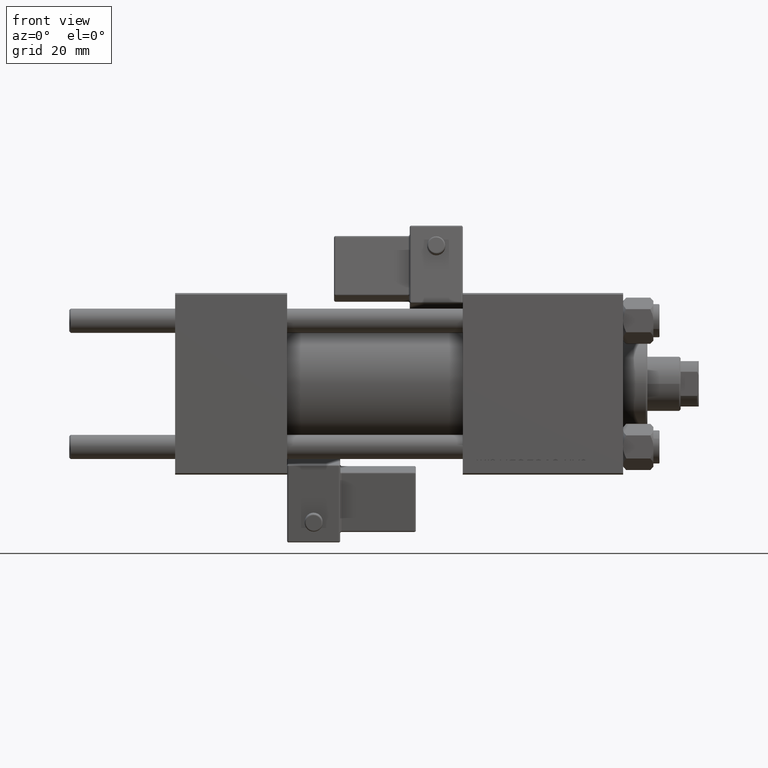
[diagram: clean part render]
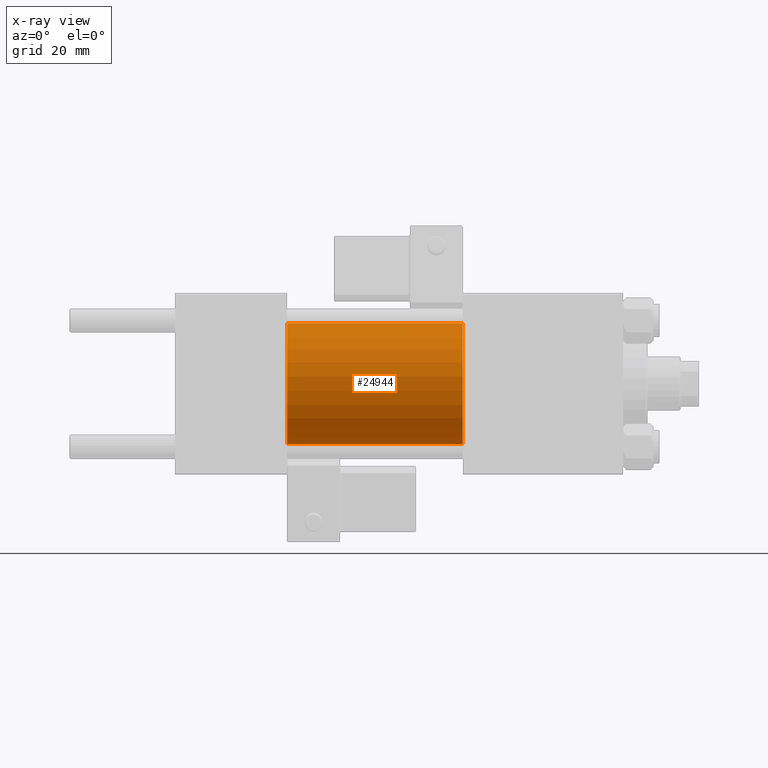
[diagram: x-ray — body ghosted, one internal face saturated and labeled with its STEP entity id]
A machine part, front view, then the same camera in x-ray: the body is ghosted and one INTERNAL B-rep face — a face not visible from any outside direction — is saturated and labeled: STEP entity #24944.
In plain terms, the highlighted cylindrical surface (partial cylindrical patch) has radius 20 mm, axis along (-1, -0, -0).
Its self-contained STEP definition (entity closure, byte-faithful):
#930 = DIRECTION ( 'NONE',  ( 0.000000000000000000, 0.000000000000000000, -1.000000000000000000 ) ) ;
#1566 = EDGE_LOOP ( 'NONE', ( #32404, #4285, #28802, #31314 ) ) ;
#4285 = ORIENTED_EDGE ( 'NONE', *, *, #21292, .T. ) ;
#4785 = VECTOR ( 'NONE', #33502, 1000.000000000000000 ) ;
#4838 = DIRECTION ( 'NONE',  ( 0.000000000000000000, 0.000000000000000000, -1.000000000000000000 ) ) ;
#5286 = VECTOR ( 'NONE', #35575, 1000.000000000000000 ) ;
#6251 = DIRECTION ( 'NONE',  ( -1.000000000000000000, -0.000000000000000000, -0.000000000000000000 ) ) ;
#7932 = EDGE_CURVE ( 'NONE', #30379, #21343, #31614, .T. ) ;
#10203 = FACE_OUTER_BOUND ( 'NONE', #1566, .T. ) ;
#13681 = CIRCLE ( 'NONE', #43110, 20.00000000000000000 ) ;
#15557 = CARTESIAN_POINT ( 'NONE',  ( 37.00000000000000000, 0.000000000000000000, 20.00000000000000000 ) ) ;
#17212 = DIRECTION ( 'NONE',  ( 1.000000000000000000, 0.000000000000000000, 0.000000000000000000 ) ) ;
#17438 = CARTESIAN_POINT ( 'NONE',  ( 95.00000000000000000, 2.449293598294706119E-15, -20.00000000000000000 ) ) ;
#17691 = LINE ( 'NONE', #17438, #4785 ) ;
#17970 = CARTESIAN_POINT ( 'NONE',  ( 95.00000000000000000, 2.449293598294706119E-15, -20.00000000000000000 ) ) ;
#21208 = DIRECTION ( 'NONE',  ( 1.000000000000000000, 0.000000000000000000, 0.000000000000000000 ) ) ;
#21292 = EDGE_CURVE ( 'NONE', #28949, #34409, #17691, .T. ) ;
#21343 = VERTEX_POINT ( 'NONE', #15557 ) ;
#24637 = CIRCLE ( 'NONE', #48179, 20.00000000000000000 ) ;
#24944 = ADVANCED_FACE ( 'NONE', ( #10203 ), #34183, .F. ) ;
#28802 = ORIENTED_EDGE ( 'NONE', *, *, #42040, .F. ) ;
#28949 = VERTEX_POINT ( 'NONE', #17970 ) ;
#30379 = VERTEX_POINT ( 'NONE', #44905 ) ;
#31314 = ORIENTED_EDGE ( 'NONE', *, *, #7932, .F. ) ;
#31614 = LINE ( 'NONE', #43202, #5286 ) ;
#32404 = ORIENTED_EDGE ( 'NONE', *, *, #43345, .T. ) ;
#33502 = DIRECTION ( 'NONE',  ( -1.000000000000000000, -0.000000000000000000, -0.000000000000000000 ) ) ;
#33672 = CARTESIAN_POINT ( 'NONE',  ( 37.00000000000000000, 2.449293598294706119E-15, -20.00000000000000000 ) ) ;
#34183 = CYLINDRICAL_SURFACE ( 'NONE', #37755, 20.00000000000000000 ) ;
#34409 = VERTEX_POINT ( 'NONE', #33672 ) ;
#35575 = DIRECTION ( 'NONE',  ( -1.000000000000000000, -0.000000000000000000, -0.000000000000000000 ) ) ;
#37014 = CARTESIAN_POINT ( 'NONE',  ( 37.00000000000000000, 0.000000000000000000, 0.000000000000000000 ) ) ;
#37755 = AXIS2_PLACEMENT_3D ( 'NONE', #38129, #6251, #38910 ) ;
#38129 = CARTESIAN_POINT ( 'NONE',  ( 95.00000000000000000, 0.000000000000000000, 0.000000000000000000 ) ) ;
#38910 = DIRECTION ( 'NONE',  ( 0.000000000000000000, 0.000000000000000000, 1.000000000000000000 ) ) ;
#42040 = EDGE_CURVE ( 'NONE', #21343, #34409, #13681, .T. ) ;
#43110 = AXIS2_PLACEMENT_3D ( 'NONE', #37014, #21208, #930 ) ;
#43202 = CARTESIAN_POINT ( 'NONE',  ( 95.00000000000000000, 0.000000000000000000, 20.00000000000000000 ) ) ;
#43345 = EDGE_CURVE ( 'NONE', #30379, #28949, #24637, .T. ) ;
#44905 = CARTESIAN_POINT ( 'NONE',  ( 95.00000000000000000, 0.000000000000000000, 20.00000000000000000 ) ) ;
#48179 = AXIS2_PLACEMENT_3D ( 'NONE', #48544, #17212, #4838 ) ;
#48544 = CARTESIAN_POINT ( 'NONE',  ( 95.00000000000000000, 0.000000000000000000, 0.000000000000000000 ) ) ;